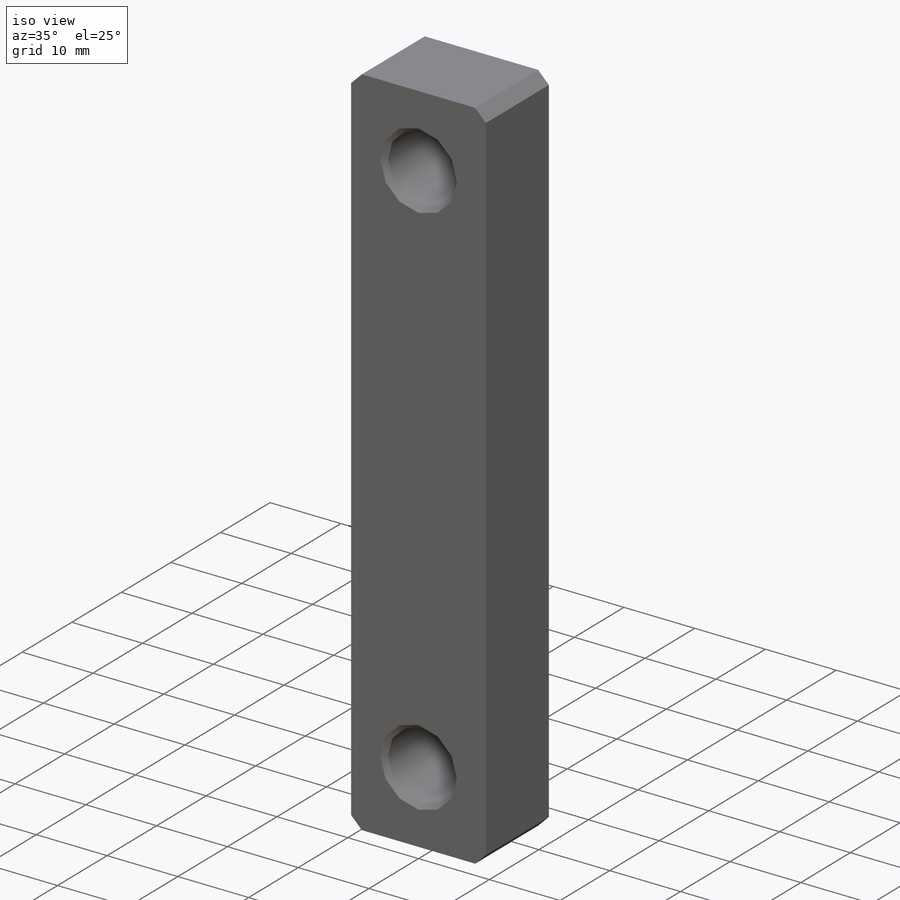
[diagram: iso view]
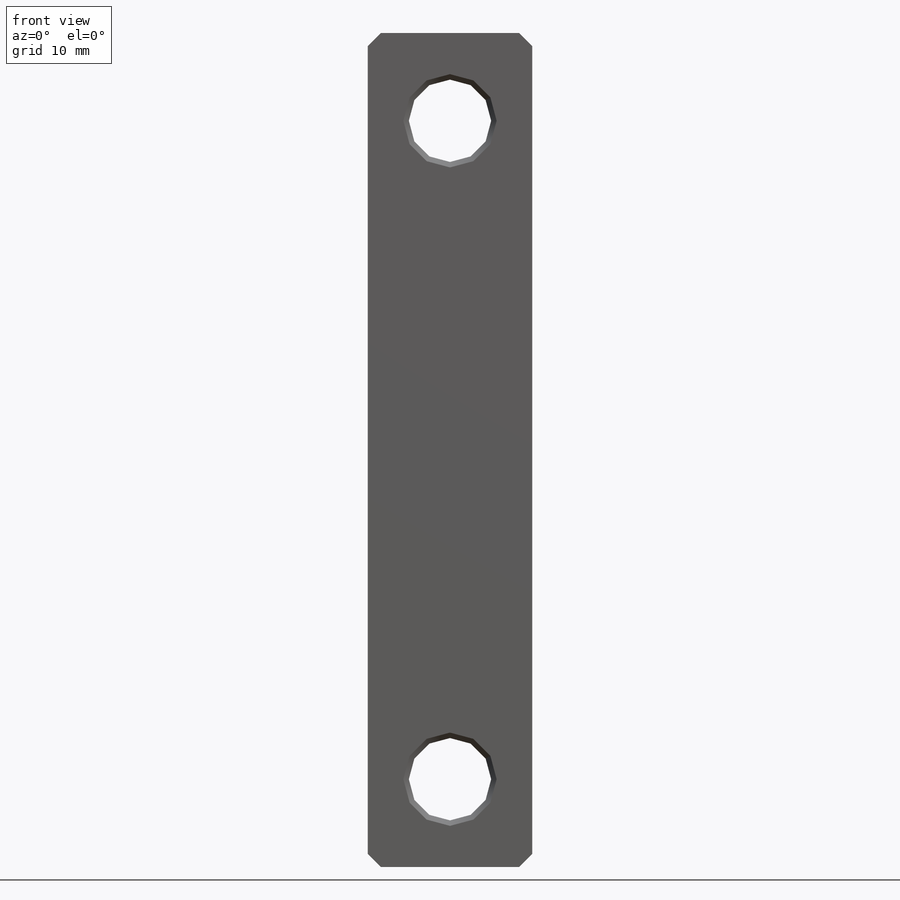
[diagram: front view]
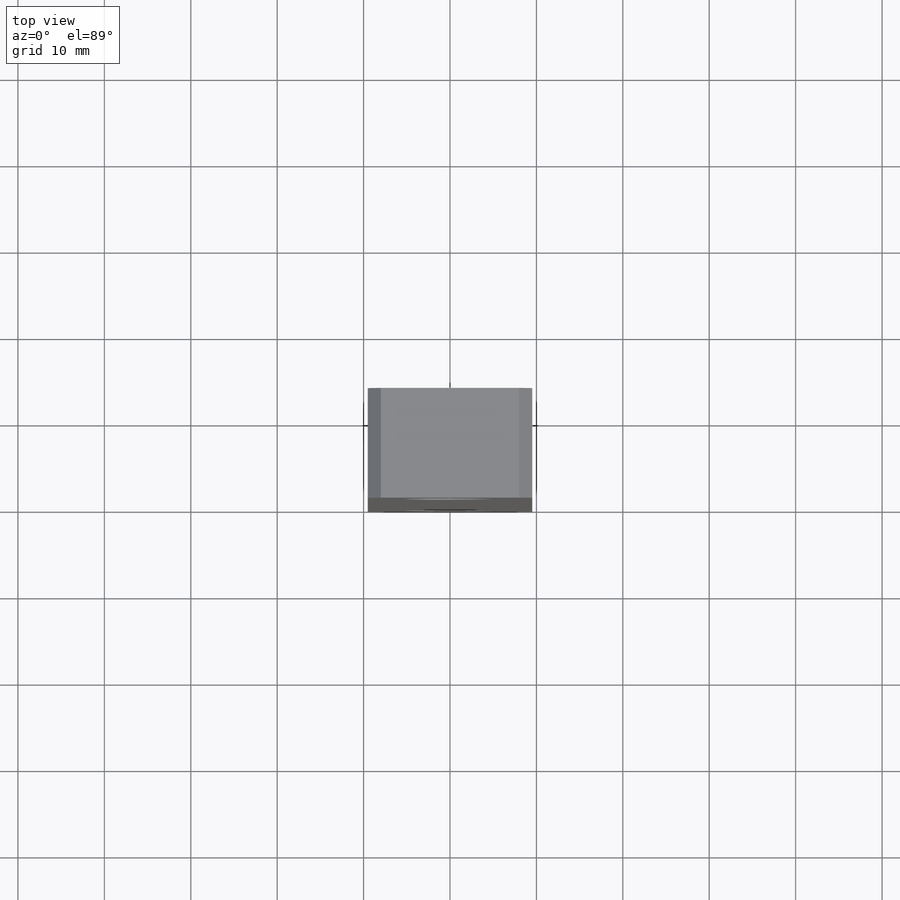
[diagram: top view]
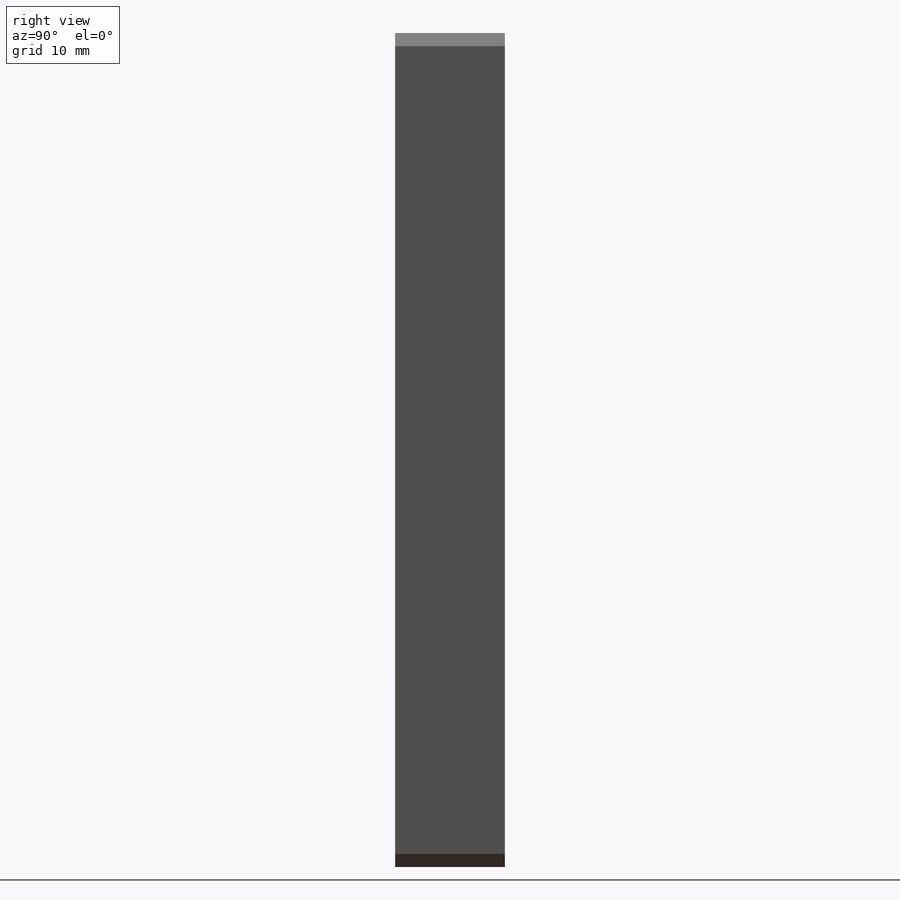
[diagram: right view]
SOLIDWORKS PART (.sldprt)
format: sldprt  version: not decoded by parser v0  size: 214,016 bytes
history: native  units: mm
features: sketch x3, material x1, extrude x1, hole x1, chamfer x1 + 1 further entry (+10 scaffold rows collapsed)
feature tree (18):
  scaffold x10  (default folders/planes/origin — collapsed)
  material  "6061-T6 Al"
  "Origin"  ID=392984584
  sketch  "Sketch1"  dims[c1.D1=226.06mm c1.D2=170.18mm c1.D3=2.54mm c1.D4=185.42mm c1.D5=19.05mm c1.D6=74.93mm c2.D1=96.52mm c2.D2=19.05mm]
  extrude  "Boss-Extrude1"  Depth=12.7mm
  hole  "3/8-16 Tapped Hole1"  Diameter=7.9375mm Depth=27.0002mm
  sketch  "Sketch19"  dims[c1.D1=38.1mm c1.D2=50.8mm c2.D1=76.2mm]
  sketch  "Sketch18"  dims[hole-wizard template sketch: 27 standard entries collapsed; hole parameters kept: c8.Tap Drill Depth=27.0002mm c8.Thread Major Dia.=9.525mm c8.Thread Depth=19.05mm c8.Near C'Sink Dia.=10.795mm c8.D6=~4.399409mm c8.Near C'Sink Angle=90.0deg c8.D7=~14.816244mm c8.Drill Angle=118.0deg]
  chamfer  "Chamfer1"  Distance=1.524mm Angle=45deg
decode coverage: 6 of 6 modeling features carry decoded parameters; 1 rows unclassified (native names shown)
note: ~ marks probable driven/reference dimensions
note: suppression state not decoded; provenance and decode notes live in map.json
